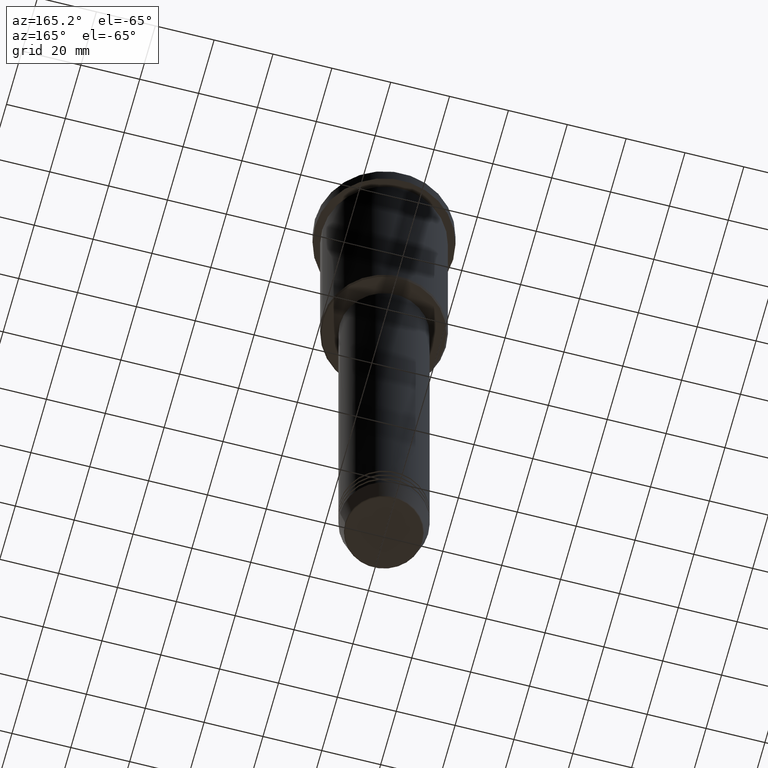
[diagram: clean part render]
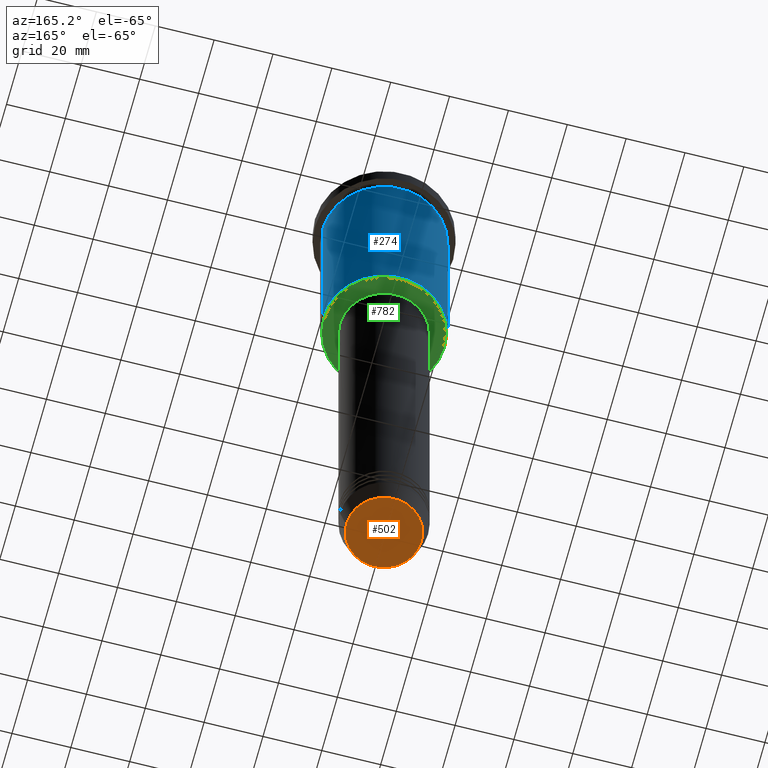
[diagram: same view with three faces highlighted in distinct colors, each labeled with its STEP entity id]
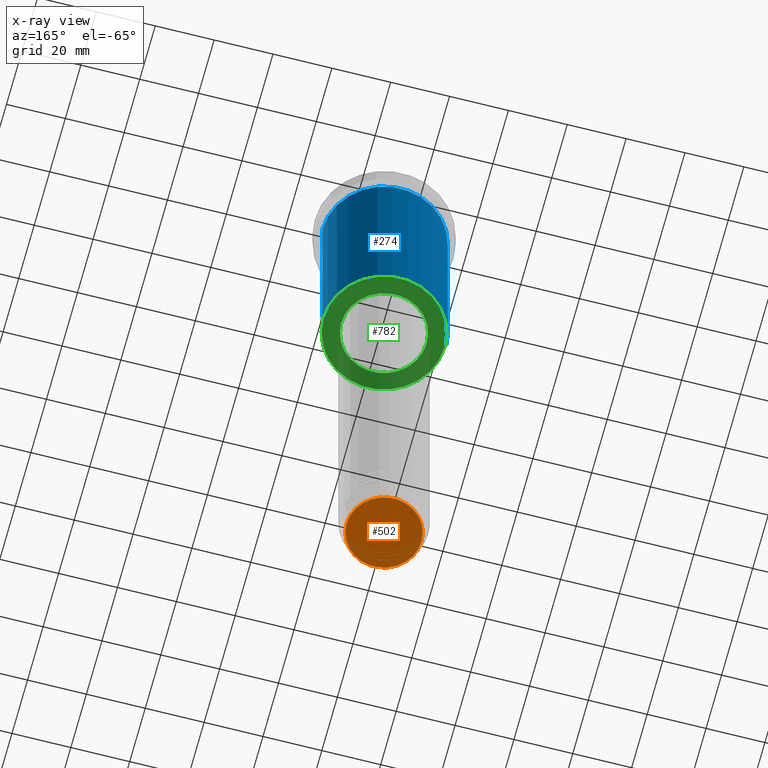
[diagram: x-ray of the same camera — body ghosted, the three highlighted faces saturated]
A machine part, auxiliary view with three faces highlighted in distinct colors.
The next image is the same camera in x-ray (body ghosted, the three faces saturated) — at least one of them is partly hidden behind the body in this view.
Their STEP definitions:

[orange] entity #502 — the highlighted planar face has unit normal (0, -0, 1).
#190 = FACE_OUTER_BOUND ( 'NONE', #354, .T. ) ;
#354 = EDGE_LOOP ( 'NONE', ( #604, #1032 ) ) ;
#392 = DIRECTION ( 'NONE',  ( 0.000000000000000000, 0.000000000000000000, -1.000000000000000000 ) ) ;
#462 = PLANE ( 'NONE',  #1041 ) ;
#479 = AXIS2_PLACEMENT_3D ( 'NONE', #663, #392, #1127 ) ;
#502 = ADVANCED_FACE ( 'NONE', ( #190 ), #462, .F. ) ;
#522 = CIRCLE ( 'NONE', #591, 12.74069215899266538 ) ;
#578 = CARTESIAN_POINT ( 'NONE',  ( 0.000000000000000000, 0.000000000000000000, -230.9999999999999716 ) ) ;
#591 = AXIS2_PLACEMENT_3D ( 'NONE', #578, #738, #838 ) ;
#604 = ORIENTED_EDGE ( 'NONE', *, *, #1134, .T. ) ;
#663 = CARTESIAN_POINT ( 'NONE',  ( 0.000000000000000000, 0.000000000000000000, -230.9999999999999716 ) ) ;
#738 = DIRECTION ( 'NONE',  ( 0.000000000000000000, 0.000000000000000000, -1.000000000000000000 ) ) ;
#806 = CARTESIAN_POINT ( 'NONE',  ( 0.000000000000000000, 0.000000000000000000, -230.9999999999999716 ) ) ;
#825 = EDGE_CURVE ( 'NONE', #959, #1125, #522, .T. ) ;
#832 = CARTESIAN_POINT ( 'NONE',  ( 12.74069215899266538, 0.000000000000000000, -230.9999999999999716 ) ) ;
#838 = DIRECTION ( 'NONE',  ( 1.000000000000000000, 0.000000000000000000, 0.000000000000000000 ) ) ;
#918 = CARTESIAN_POINT ( 'NONE',  ( -12.74069215899266538, 1.589857736427681824E-15, -230.9999999999999716 ) ) ;
#923 = DIRECTION ( 'NONE',  ( 1.000000000000000000, 0.000000000000000000, 0.000000000000000000 ) ) ;
#959 = VERTEX_POINT ( 'NONE', #918 ) ;
#999 = CIRCLE ( 'NONE', #479, 12.74069215899266538 ) ;
#1010 = DIRECTION ( 'NONE',  ( 0.000000000000000000, -0.000000000000000000, 1.000000000000000000 ) ) ;
#1032 = ORIENTED_EDGE ( 'NONE', *, *, #825, .T. ) ;
#1041 = AXIS2_PLACEMENT_3D ( 'NONE', #806, #1010, #923 ) ;
#1125 = VERTEX_POINT ( 'NONE', #832 ) ;
#1127 = DIRECTION ( 'NONE',  ( 1.000000000000000000, 0.000000000000000000, 0.000000000000000000 ) ) ;
#1134 = EDGE_CURVE ( 'NONE', #1125, #959, #999, .T. ) ;

[blue] entity #274 — the highlighted cylindrical surface (partial cylindrical patch) has radius 21 mm, axis along (-0, -0, 1).
#3 = VECTOR ( 'NONE', #804, 1000.000000000000000 ) ;
#21 = DIRECTION ( 'NONE',  ( -0.000000000000000000, -0.000000000000000000, 1.000000000000000000 ) ) ;
#35 = CARTESIAN_POINT ( 'NONE',  ( 21.00000000000000000, 0.000000000000000000, -75.50000000000001421 ) ) ;
#71 = ORIENTED_EDGE ( 'NONE', *, *, #821, .T. ) ;
#73 = CYLINDRICAL_SURFACE ( 'NONE', #202, 21.00000000000000000 ) ;
#98 = DIRECTION ( 'NONE',  ( -0.000000000000000000, -0.000000000000000000, 1.000000000000000000 ) ) ;
#100 = EDGE_CURVE ( 'NONE', #912, #1050, #873, .T. ) ;
#160 = FACE_OUTER_BOUND ( 'NONE', #689, .T. ) ;
#197 = CARTESIAN_POINT ( 'NONE',  ( 21.00000000000000000, 0.000000000000000000, 0.000000000000000000 ) ) ;
#202 = AXIS2_PLACEMENT_3D ( 'NONE', #420, #678, #436 ) ;
#274 = ADVANCED_FACE ( 'NONE', ( #160 ), #73, .T. ) ;
#312 = VERTEX_POINT ( 'NONE', #336 ) ;
#334 = ORIENTED_EDGE ( 'NONE', *, *, #100, .T. ) ;
#336 = CARTESIAN_POINT ( 'NONE',  ( 21.00000000000000000, 0.000000000000000000, -6.999999999999994671 ) ) ;
#420 = CARTESIAN_POINT ( 'NONE',  ( 0.000000000000000000, 0.000000000000000000, 0.000000000000000000 ) ) ;
#436 = DIRECTION ( 'NONE',  ( 1.000000000000000000, 0.000000000000000000, 0.000000000000000000 ) ) ;
#447 = CIRCLE ( 'NONE', #684, 21.00000000000000000 ) ;
#501 = CIRCLE ( 'NONE', #1016, 21.00000000000000000 ) ;
#514 = ORIENTED_EDGE ( 'NONE', *, *, #879, .F. ) ;
#625 = CARTESIAN_POINT ( 'NONE',  ( -21.00000000000000000, 2.571758278209441661E-15, 0.000000000000000000 ) ) ;
#678 = DIRECTION ( 'NONE',  ( -0.000000000000000000, -0.000000000000000000, 1.000000000000000000 ) ) ;
#684 = AXIS2_PLACEMENT_3D ( 'NONE', #1039, #21, #1107 ) ;
#689 = EDGE_LOOP ( 'NONE', ( #71, #334, #514, #969 ) ) ;
#718 = LINE ( 'NONE', #197, #3 ) ;
#804 = DIRECTION ( 'NONE',  ( -0.000000000000000000, -0.000000000000000000, 1.000000000000000000 ) ) ;
#807 = EDGE_CURVE ( 'NONE', #1095, #312, #718, .T. ) ;
#821 = EDGE_CURVE ( 'NONE', #1095, #912, #447, .T. ) ;
#855 = VECTOR ( 'NONE', #993, 1000.000000000000000 ) ;
#872 = CARTESIAN_POINT ( 'NONE',  ( 0.000000000000000000, 0.000000000000000000, -6.999999999999994671 ) ) ;
#873 = LINE ( 'NONE', #625, #855 ) ;
#879 = EDGE_CURVE ( 'NONE', #312, #1050, #501, .T. ) ;
#912 = VERTEX_POINT ( 'NONE', #925 ) ;
#925 = CARTESIAN_POINT ( 'NONE',  ( -21.00000000000000000, 2.571758278209441661E-15, -75.50000000000001421 ) ) ;
#935 = CARTESIAN_POINT ( 'NONE',  ( -21.00000000000000000, 2.571758278209441661E-15, -6.999999999999994671 ) ) ;
#969 = ORIENTED_EDGE ( 'NONE', *, *, #807, .F. ) ;
#993 = DIRECTION ( 'NONE',  ( -0.000000000000000000, -0.000000000000000000, 1.000000000000000000 ) ) ;
#1002 = DIRECTION ( 'NONE',  ( 1.000000000000000000, 0.000000000000000000, 0.000000000000000000 ) ) ;
#1016 = AXIS2_PLACEMENT_3D ( 'NONE', #872, #98, #1002 ) ;
#1039 = CARTESIAN_POINT ( 'NONE',  ( 0.000000000000000000, 0.000000000000000000, -75.50000000000001421 ) ) ;
#1050 = VERTEX_POINT ( 'NONE', #935 ) ;
#1095 = VERTEX_POINT ( 'NONE', #35 ) ;
#1107 = DIRECTION ( 'NONE',  ( -1.000000000000000000, 0.000000000000000000, 0.000000000000000000 ) ) ;

[green] entity #782 — the highlighted planar face has unit normal (0, 0, -1).
#58 = VERTEX_POINT ( 'NONE', #329 ) ;
#92 = EDGE_CURVE ( 'NONE', #867, #207, #1161, .T. ) ;
#96 = CARTESIAN_POINT ( 'NONE',  ( 0.000000000000000000, 0.000000000000000000, -75.99999999999998579 ) ) ;
#151 = ORIENTED_EDGE ( 'NONE', *, *, #1174, .T. ) ;
#154 = DIRECTION ( 'NONE',  ( -0.000000000000000000, -0.000000000000000000, 1.000000000000000000 ) ) ;
#206 = CARTESIAN_POINT ( 'NONE',  ( 0.000000000000000000, 0.000000000000000000, -75.99999999999998579 ) ) ;
#207 = VERTEX_POINT ( 'NONE', #916 ) ;
#211 = AXIS2_PLACEMENT_3D ( 'NONE', #560, #1033, #748 ) ;
#216 = FACE_OUTER_BOUND ( 'NONE', #264, .T. ) ;
#224 = ORIENTED_EDGE ( 'NONE', *, *, #92, .T. ) ;
#239 = DIRECTION ( 'NONE',  ( -0.000000000000000000, -0.000000000000000000, 1.000000000000000000 ) ) ;
#264 = EDGE_LOOP ( 'NONE', ( #151, #763 ) ) ;
#268 = CIRCLE ( 'NONE', #614, 20.50000000000004619 ) ;
#287 = AXIS2_PLACEMENT_3D ( 'NONE', #1012, #239, #600 ) ;
#297 = PLANE ( 'NONE',  #211 ) ;
#329 = CARTESIAN_POINT ( 'NONE',  ( -20.50000000000004619, 2.541142108230760635E-15, -75.99999999999998579 ) ) ;
#395 = EDGE_CURVE ( 'NONE', #58, #543, #1156, .T. ) ;
#469 = AXIS2_PLACEMENT_3D ( 'NONE', #96, #799, #793 ) ;
#508 = CARTESIAN_POINT ( 'NONE',  ( 20.50000000000004619, 0.000000000000000000, -75.99999999999998579 ) ) ;
#543 = VERTEX_POINT ( 'NONE', #508 ) ;
#560 = CARTESIAN_POINT ( 'NONE',  ( 0.000000000000000000, 21.00000000000000000, -75.99999999999998579 ) ) ;
#600 = DIRECTION ( 'NONE',  ( 1.000000000000000000, 0.000000000000000000, 0.000000000000000000 ) ) ;
#607 = DIRECTION ( 'NONE',  ( 1.000000000000000000, 0.000000000000000000, 0.000000000000000000 ) ) ;
#614 = AXIS2_PLACEMENT_3D ( 'NONE', #206, #659, #675 ) ;
#656 = EDGE_CURVE ( 'NONE', #207, #867, #927, .T. ) ;
#659 = DIRECTION ( 'NONE',  ( 0.000000000000000000, 0.000000000000000000, -1.000000000000000000 ) ) ;
#675 = DIRECTION ( 'NONE',  ( -1.000000000000000000, 0.000000000000000000, 0.000000000000000000 ) ) ;
#748 = DIRECTION ( 'NONE',  ( -1.000000000000000000, 0.000000000000000000, -0.000000000000000000 ) ) ;
#763 = ORIENTED_EDGE ( 'NONE', *, *, #395, .T. ) ;
#776 = CARTESIAN_POINT ( 'NONE',  ( -14.49999999999999822, 1.775737858763662015E-15, -75.99999999999998579 ) ) ;
#782 = ADVANCED_FACE ( 'NONE', ( #216, #1136 ), #297, .T. ) ;
#791 = EDGE_LOOP ( 'NONE', ( #1054, #224 ) ) ;
#793 = DIRECTION ( 'NONE',  ( -1.000000000000000000, 0.000000000000000000, 0.000000000000000000 ) ) ;
#799 = DIRECTION ( 'NONE',  ( 0.000000000000000000, 0.000000000000000000, -1.000000000000000000 ) ) ;
#867 = VERTEX_POINT ( 'NONE', #776 ) ;
#916 = CARTESIAN_POINT ( 'NONE',  ( 14.49999999999999822, 0.000000000000000000, -75.99999999999998579 ) ) ;
#927 = CIRCLE ( 'NONE', #287, 14.49999999999999822 ) ;
#966 = CARTESIAN_POINT ( 'NONE',  ( 0.000000000000000000, 0.000000000000000000, -75.99999999999998579 ) ) ;
#1012 = CARTESIAN_POINT ( 'NONE',  ( 0.000000000000000000, 0.000000000000000000, -75.99999999999998579 ) ) ;
#1033 = DIRECTION ( 'NONE',  ( 0.000000000000000000, 0.000000000000000000, -1.000000000000000000 ) ) ;
#1054 = ORIENTED_EDGE ( 'NONE', *, *, #656, .T. ) ;
#1136 = FACE_BOUND ( 'NONE', #791, .T. ) ;
#1156 = CIRCLE ( 'NONE', #469, 20.50000000000004619 ) ;
#1161 = CIRCLE ( 'NONE', #1182, 14.49999999999999822 ) ;
#1174 = EDGE_CURVE ( 'NONE', #543, #58, #268, .T. ) ;
#1182 = AXIS2_PLACEMENT_3D ( 'NONE', #966, #154, #607 ) ;